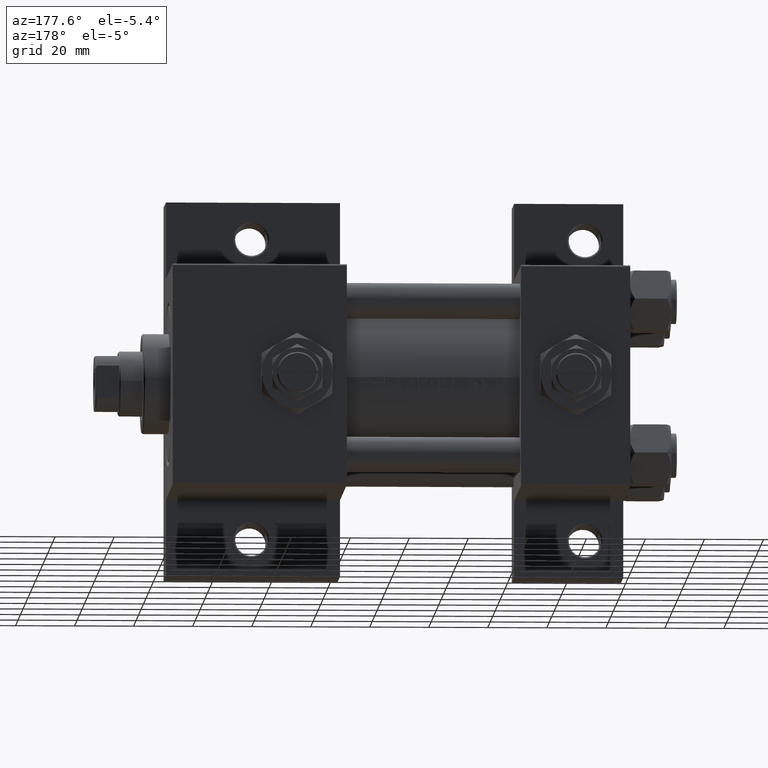
[diagram: clean part render]
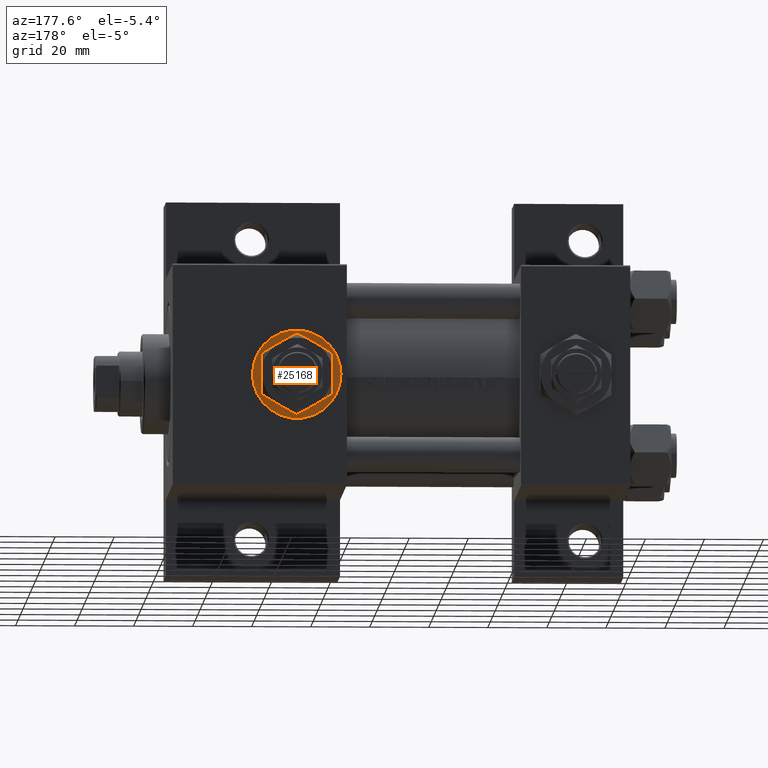
[diagram: same view with one face highlighted and labeled with its STEP entity id]
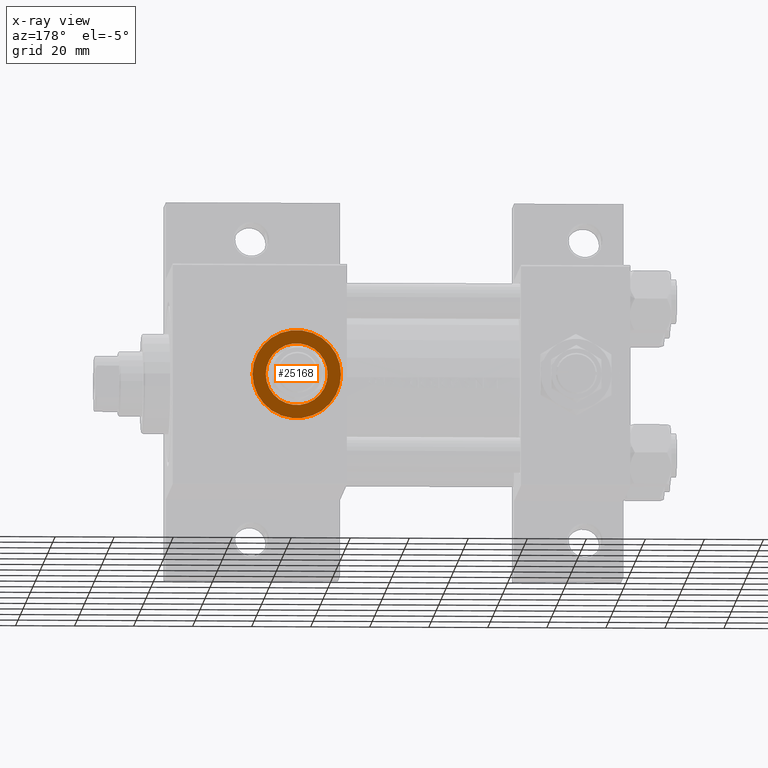
[diagram: x-ray of the same camera — body ghosted, the highlighted face saturated]
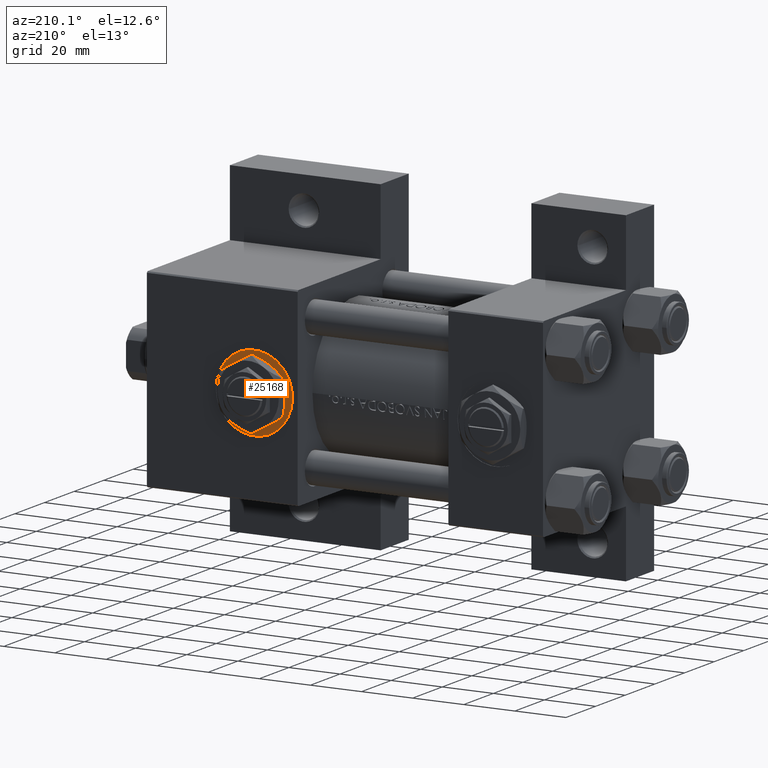
[diagram: same view with one face highlighted and labeled with its STEP entity id]
A machine part, auxiliary view. The second image highlights one B-rep face of the part: STEP entity #25168.
The next image is the same camera in x-ray: the body ghosted, the highlighted face saturated — about 0% of this face is hidden behind the body in this view.
A second angle (auxiliary view) of the same face is appended — the face is thin or edge-on in the first view.
In plain terms, the highlighted planar face has unit normal (0, 1, 0).
Its self-contained STEP definition (entity closure, byte-faithful):
#860 = CARTESIAN_POINT ( 'NONE',  ( 113.0000000000000000, -6.938893903907226011E-15, 37.29999999999998295 ) ) ;
#1044 = EDGE_CURVE ( 'NONE', #21310, #8440, #19207, .T. ) ;
#2791 = CARTESIAN_POINT ( 'NONE',  ( 113.0000000000000000, -6.938893903907226011E-15, 37.29999999999998295 ) ) ;
#2876 = AXIS2_PLACEMENT_3D ( 'NONE', #39504, #36045, #43707 ) ;
#6997 = DIRECTION ( 'NONE',  ( 1.000000000000000000, 0.000000000000000000, 0.000000000000000000 ) ) ;
#7787 = AXIS2_PLACEMENT_3D ( 'NONE', #9702, #13439, #36016 ) ;
#7956 = CARTESIAN_POINT ( 'NONE',  ( 128.0000000000000000, -6.938893903907226011E-15, 37.29999999999998295 ) ) ;
#8440 = VERTEX_POINT ( 'NONE', #11213 ) ;
#9702 = CARTESIAN_POINT ( 'NONE',  ( 113.0000000000000000, -6.938893903907226011E-15, 37.29999999999998295 ) ) ;
#10770 = ORIENTED_EDGE ( 'NONE', *, *, #27579, .T. ) ;
#11213 = CARTESIAN_POINT ( 'NONE',  ( 123.4800000000000040, -5.655464058400800522E-15, 37.29999999999998295 ) ) ;
#12106 = ORIENTED_EDGE ( 'NONE', *, *, #20969, .T. ) ;
#12687 = FACE_BOUND ( 'NONE', #39239, .T. ) ;
#12689 = DIRECTION ( 'NONE',  ( 1.000000000000000000, 0.000000000000000000, 0.000000000000000000 ) ) ;
#13439 = DIRECTION ( 'NONE',  ( 0.000000000000000000, 0.000000000000000000, 1.000000000000000000 ) ) ;
#16422 = CARTESIAN_POINT ( 'NONE',  ( 113.0000000000000000, -6.938893903907226011E-15, 37.29999999999998295 ) ) ;
#16848 = EDGE_LOOP ( 'NONE', ( #23424, #10770 ) ) ;
#17680 = DIRECTION ( 'NONE',  ( 0.000000000000000000, 0.000000000000000000, 1.000000000000000000 ) ) ;
#17876 = DIRECTION ( 'NONE',  ( 0.000000000000000000, 0.000000000000000000, 1.000000000000000000 ) ) ;
#19207 = CIRCLE ( 'NONE', #23932, 10.48000000000000398 ) ;
#20969 = EDGE_CURVE ( 'NONE', #8440, #21310, #28226, .T. ) ;
#21310 = VERTEX_POINT ( 'NONE', #29206 ) ;
#22243 = VERTEX_POINT ( 'NONE', #7956 ) ;
#23424 = ORIENTED_EDGE ( 'NONE', *, *, #41400, .T. ) ;
#23932 = AXIS2_PLACEMENT_3D ( 'NONE', #16422, #46665, #12689 ) ;
#25168 = ADVANCED_FACE ( 'NONE', ( #12687, #39972 ), #47405, .T. ) ;
#25327 = DIRECTION ( 'NONE',  ( 1.000000000000000000, 0.000000000000000000, 0.000000000000000000 ) ) ;
#26889 = AXIS2_PLACEMENT_3D ( 'NONE', #860, #17876, #25327 ) ;
#27579 = EDGE_CURVE ( 'NONE', #36150, #22243, #49025, .T. ) ;
#28226 = CIRCLE ( 'NONE', #2876, 10.48000000000000398 ) ;
#29206 = CARTESIAN_POINT ( 'NONE',  ( 102.5199999999999960, -6.938893903907226011E-15, 37.29999999999998295 ) ) ;
#32246 = CARTESIAN_POINT ( 'NONE',  ( 97.99999999999998579, -5.101923705186194844E-15, 37.29999999999998295 ) ) ;
#36016 = DIRECTION ( 'NONE',  ( 1.000000000000000000, 0.000000000000000000, -0.000000000000000000 ) ) ;
#36045 = DIRECTION ( 'NONE',  ( -0.000000000000000000, -0.000000000000000000, -1.000000000000000000 ) ) ;
#36150 = VERTEX_POINT ( 'NONE', #32246 ) ;
#36372 = AXIS2_PLACEMENT_3D ( 'NONE', #2791, #17680, #6997 ) ;
#36931 = ORIENTED_EDGE ( 'NONE', *, *, #1044, .T. ) ;
#39239 = EDGE_LOOP ( 'NONE', ( #36931, #12106 ) ) ;
#39504 = CARTESIAN_POINT ( 'NONE',  ( 113.0000000000000000, -6.938893903907226011E-15, 37.29999999999998295 ) ) ;
#39972 = FACE_OUTER_BOUND ( 'NONE', #16848, .T. ) ;
#41400 = EDGE_CURVE ( 'NONE', #22243, #36150, #42719, .T. ) ;
#42719 = CIRCLE ( 'NONE', #26889, 15.00000000000000000 ) ;
#43707 = DIRECTION ( 'NONE',  ( 1.000000000000000000, 0.000000000000000000, 0.000000000000000000 ) ) ;
#46665 = DIRECTION ( 'NONE',  ( -0.000000000000000000, -0.000000000000000000, -1.000000000000000000 ) ) ;
#47405 = PLANE ( 'NONE',  #7787 ) ;
#49025 = CIRCLE ( 'NONE', #36372, 15.00000000000000000 ) ;